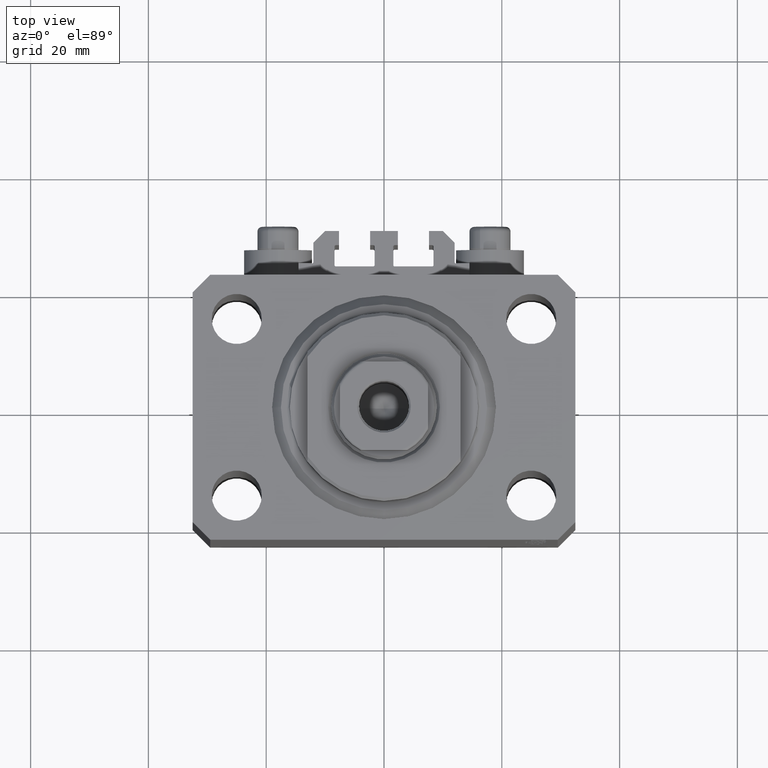
[diagram: clean part render]
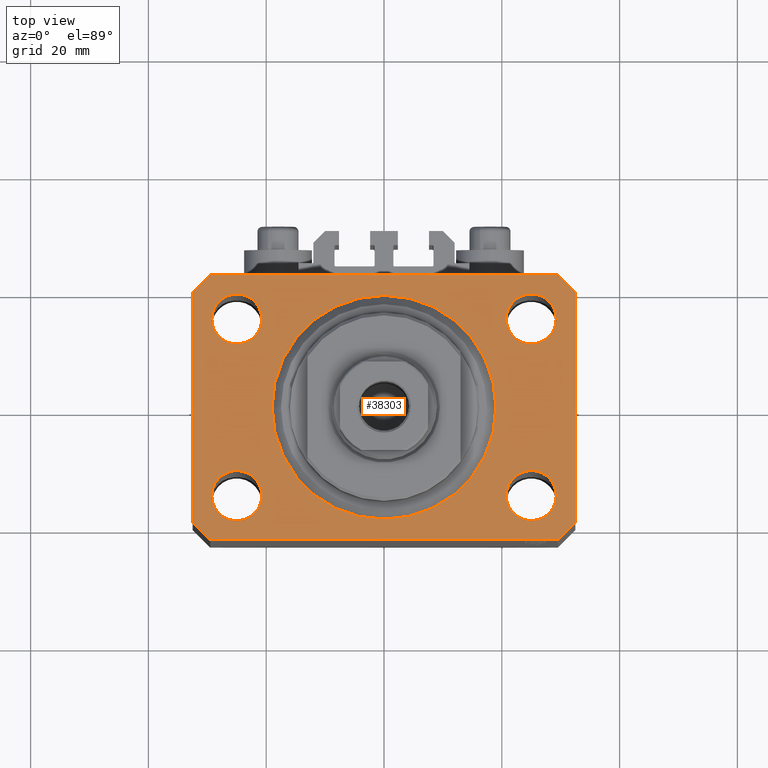
[diagram: same view with one face highlighted and labeled with its STEP entity id]
A machine part, top view. The second image highlights one B-rep face of the part: STEP entity #38303.
In plain terms, the highlighted planar face has unit normal (0, 0, 1).
Its self-contained STEP definition (entity closure, byte-faithful):
#23 = DIRECTION ( 'NONE',  ( 1.000000000000000000, 0.000000000000000000, 0.000000000000000000 ) ) ;
#2142 = DIRECTION ( 'NONE',  ( 0.000000000000000000, 0.000000000000000000, 1.000000000000000000 ) ) ;
#2761 = ORIENTED_EDGE ( 'NONE', *, *, #42204, .T. ) ;
#3304 = LINE ( 'NONE', #36657, #15096 ) ;
#3498 = EDGE_CURVE ( 'NONE', #29941, #27329, #32950, .T. ) ;
#3512 = VERTEX_POINT ( 'NONE', #23057 ) ;
#3557 = CIRCLE ( 'NONE', #30407, 19.00000000000000000 ) ;
#3789 = DIRECTION ( 'NONE',  ( 1.000000000000000000, 0.000000000000000000, 0.000000000000000000 ) ) ;
#4131 = CARTESIAN_POINT ( 'NONE',  ( 0.000000000000000000, 0.000000000000000000, 0.000000000000000000 ) ) ;
#5220 = CARTESIAN_POINT ( 'NONE',  ( 20.75000000004271072, 14.99999999999999289, 0.000000000000000000 ) ) ;
#5270 = CARTESIAN_POINT ( 'NONE',  ( 32.49999999999651124, -19.49999999999949196, 0.000000000000000000 ) ) ;
#5276 = CIRCLE ( 'NONE', #40533, 4.249999999976314058 ) ;
#5337 = CIRCLE ( 'NONE', #32183, 19.00000000000000000 ) ;
#5360 = LINE ( 'NONE', #12560, #32046 ) ;
#5439 = DIRECTION ( 'NONE',  ( -1.000000000000000000, -3.528251137580330676E-16, 0.000000000000000000 ) ) ;
#5705 = VERTEX_POINT ( 'NONE', #13856 ) ;
#5710 = ORIENTED_EDGE ( 'NONE', *, *, #15428, .T. ) ;
#5794 = CARTESIAN_POINT ( 'NONE',  ( 29.49999999999650413, -22.49999999999949196, 0.000000000000000000 ) ) ;
#5859 = ORIENTED_EDGE ( 'NONE', *, *, #7796, .F. ) ;
#6658 = EDGE_CURVE ( 'NONE', #39912, #45147, #5337, .T. ) ;
#6990 = DIRECTION ( 'NONE',  ( 1.000000000000000000, 0.000000000000000000, 0.000000000000000000 ) ) ;
#7057 = VECTOR ( 'NONE', #23085, 1000.000000000000000 ) ;
#7372 = DIRECTION ( 'NONE',  ( 0.000000000000000000, 0.000000000000000000, 1.000000000000000000 ) ) ;
#7397 = ORIENTED_EDGE ( 'NONE', *, *, #12343, .F. ) ;
#7582 = VERTEX_POINT ( 'NONE', #5794 ) ;
#7796 = EDGE_CURVE ( 'NONE', #39840, #3512, #37354, .T. ) ;
#7946 = AXIS2_PLACEMENT_3D ( 'NONE', #41028, #16060, #26631 ) ;
#8333 = EDGE_CURVE ( 'NONE', #17395, #32875, #10697, .T. ) ;
#8380 = FACE_BOUND ( 'NONE', #47050, .T. ) ;
#8948 = VERTEX_POINT ( 'NONE', #22698 ) ;
#9794 = CARTESIAN_POINT ( 'NONE',  ( 19.00000000000000000, 0.000000000000000000, 0.000000000000000000 ) ) ;
#9815 = CARTESIAN_POINT ( 'NONE',  ( 24.99999999999999289, -15.00000000000000355, 0.000000000000000000 ) ) ;
#9913 = EDGE_CURVE ( 'NONE', #5705, #8948, #22470, .T. ) ;
#10502 = DIRECTION ( 'NONE',  ( -0.7071067811865344721, 0.7071067811865606734, 0.000000000000000000 ) ) ;
#10697 = CIRCLE ( 'NONE', #47478, 4.249999999957291053 ) ;
#10791 = CIRCLE ( 'NONE', #46807, 4.250000000021375790 ) ;
#10792 = VERTEX_POINT ( 'NONE', #14142 ) ;
#11082 = EDGE_LOOP ( 'NONE', ( #12052, #15617 ) ) ;
#11235 = AXIS2_PLACEMENT_3D ( 'NONE', #17864, #39240, #46662 ) ;
#11981 = FACE_OUTER_BOUND ( 'NONE', #37063, .T. ) ;
#12052 = ORIENTED_EDGE ( 'NONE', *, *, #12872, .F. ) ;
#12293 = ORIENTED_EDGE ( 'NONE', *, *, #8333, .F. ) ;
#12343 = EDGE_CURVE ( 'NONE', #27329, #29941, #40363, .T. ) ;
#12560 = CARTESIAN_POINT ( 'NONE',  ( -29.49999999999650413, -22.49999999999949907, 0.000000000000000000 ) ) ;
#12872 = EDGE_CURVE ( 'NONE', #14263, #20353, #15836, .T. ) ;
#13466 = DIRECTION ( 'NONE',  ( 0.000000000000000000, 0.000000000000000000, 1.000000000000000000 ) ) ;
#13656 = LINE ( 'NONE', #5270, #40085 ) ;
#13856 = CARTESIAN_POINT ( 'NONE',  ( -29.49999999999650413, 22.49999999999949907, 0.000000000000000000 ) ) ;
#13936 = ORIENTED_EDGE ( 'NONE', *, *, #9913, .T. ) ;
#14142 = CARTESIAN_POINT ( 'NONE',  ( -29.49999999999650413, -22.49999999999949907, 0.000000000000000000 ) ) ;
#14263 = VERTEX_POINT ( 'NONE', #15628 ) ;
#14734 = ORIENTED_EDGE ( 'NONE', *, *, #3498, .F. ) ;
#15096 = VECTOR ( 'NONE', #10502, 1000.000000000000000 ) ;
#15114 = DIRECTION ( 'NONE',  ( 0.000000000000000000, 0.000000000000000000, 1.000000000000000000 ) ) ;
#15428 = EDGE_CURVE ( 'NONE', #43228, #10792, #28861, .T. ) ;
#15609 = DIRECTION ( 'NONE',  ( 1.000000000000000000, 0.000000000000000000, 0.000000000000000000 ) ) ;
#15617 = ORIENTED_EDGE ( 'NONE', *, *, #26447, .F. ) ;
#15628 = CARTESIAN_POINT ( 'NONE',  ( -20.74999999997862687, 14.99999999999999645, 0.000000000000000000 ) ) ;
#15647 = ORIENTED_EDGE ( 'NONE', *, *, #33629, .F. ) ;
#15836 = CIRCLE ( 'NONE', #11235, 4.250000000021375790 ) ;
#16013 = LINE ( 'NONE', #42637, #45983 ) ;
#16060 = DIRECTION ( 'NONE',  ( 0.000000000000000000, 0.000000000000000000, 1.000000000000000000 ) ) ;
#16081 = DIRECTION ( 'NONE',  ( 1.000000000000000000, 0.000000000000000000, 0.000000000000000000 ) ) ;
#16627 = AXIS2_PLACEMENT_3D ( 'NONE', #36983, #37453, #40814 ) ;
#16651 = AXIS2_PLACEMENT_3D ( 'NONE', #22101, #15114, #15609 ) ;
#17306 = VECTOR ( 'NONE', #30158, 1000.000000000000114 ) ;
#17395 = VERTEX_POINT ( 'NONE', #5220 ) ;
#17864 = CARTESIAN_POINT ( 'NONE',  ( -25.00000000000000000, 14.99999999999999645, 0.000000000000000000 ) ) ;
#18161 = VECTOR ( 'NONE', #21848, 1000.000000000000000 ) ;
#18394 = CARTESIAN_POINT ( 'NONE',  ( -29.49999999999650413, 22.49999999999949907, 0.000000000000000000 ) ) ;
#18961 = EDGE_CURVE ( 'NONE', #10792, #7582, #5360, .T. ) ;
#19426 = FACE_BOUND ( 'NONE', #46034, .T. ) ;
#19458 = CARTESIAN_POINT ( 'NONE',  ( 0.000000000000000000, 0.000000000000000000, 0.000000000000000000 ) ) ;
#20056 = CARTESIAN_POINT ( 'NONE',  ( 25.00000000000000000, 14.99999999999999289, 0.000000000000000000 ) ) ;
#20269 = CARTESIAN_POINT ( 'NONE',  ( 20.75000000002367884, -15.00000000000000355, 0.000000000000000000 ) ) ;
#20353 = VERTEX_POINT ( 'NONE', #28227 ) ;
#20975 = AXIS2_PLACEMENT_3D ( 'NONE', #20056, #27260, #34926 ) ;
#21848 = DIRECTION ( 'NONE',  ( 0.7071067811865483499, 0.7071067811865466846, 0.000000000000000000 ) ) ;
#22101 = CARTESIAN_POINT ( 'NONE',  ( 24.99999999999999289, -15.00000000000000355, 0.000000000000000000 ) ) ;
#22166 = EDGE_CURVE ( 'NONE', #3512, #39840, #5276, .T. ) ;
#22470 = LINE ( 'NONE', #18394, #17306 ) ;
#22698 = CARTESIAN_POINT ( 'NONE',  ( -32.49999999999650413, 19.49999999999949907, 0.000000000000000000 ) ) ;
#23057 = CARTESIAN_POINT ( 'NONE',  ( 29.24999999997631051, -15.00000000000000355, 0.000000000000000000 ) ) ;
#23085 = DIRECTION ( 'NONE',  ( 0.000000000000000000, -1.000000000000000000, 0.000000000000000000 ) ) ;
#24219 = EDGE_CURVE ( 'NONE', #30639, #5705, #16013, .T. ) ;
#24273 = CARTESIAN_POINT ( 'NONE',  ( -32.49999999999650413, -19.49999999999949907, 0.000000000000000000 ) ) ;
#24962 = CARTESIAN_POINT ( 'NONE',  ( 32.49999999999702993, 19.49999999999945999, 0.000000000000000000 ) ) ;
#25088 = ORIENTED_EDGE ( 'NONE', *, *, #22166, .F. ) ;
#25511 = DIRECTION ( 'NONE',  ( 0.000000000000000000, 0.000000000000000000, 1.000000000000000000 ) ) ;
#25632 = CARTESIAN_POINT ( 'NONE',  ( 25.00000000000000000, 14.99999999999999289, 0.000000000000000000 ) ) ;
#26404 = FACE_BOUND ( 'NONE', #11082, .T. ) ;
#26447 = EDGE_CURVE ( 'NONE', #20353, #14263, #10791, .T. ) ;
#26587 = ORIENTED_EDGE ( 'NONE', *, *, #29245, .T. ) ;
#26631 = DIRECTION ( 'NONE',  ( 1.000000000000000000, 0.000000000000000000, -0.000000000000000000 ) ) ;
#26877 = PLANE ( 'NONE',  #7946 ) ;
#27260 = DIRECTION ( 'NONE',  ( 0.000000000000000000, 0.000000000000000000, 1.000000000000000000 ) ) ;
#27329 = VERTEX_POINT ( 'NONE', #40633 ) ;
#28227 = CARTESIAN_POINT ( 'NONE',  ( -29.25000000002137668, 14.99999999999999645, 0.000000000000000000 ) ) ;
#28861 = LINE ( 'NONE', #43736, #41223 ) ;
#29066 = CARTESIAN_POINT ( 'NONE',  ( -25.00000000000000000, 14.99999999999999645, 0.000000000000000000 ) ) ;
#29245 = EDGE_CURVE ( 'NONE', #8948, #43228, #37948, .T. ) ;
#29798 = CARTESIAN_POINT ( 'NONE',  ( 29.24999999995729283, 14.99999999999999289, 0.000000000000000000 ) ) ;
#29898 = CARTESIAN_POINT ( 'NONE',  ( 29.49999999999707967, 22.49999999999952038, 0.000000000000000000 ) ) ;
#29941 = VERTEX_POINT ( 'NONE', #39967 ) ;
#30060 = ORIENTED_EDGE ( 'NONE', *, *, #18961, .T. ) ;
#30158 = DIRECTION ( 'NONE',  ( -0.7071067811865474617, -0.7071067811865474617, 0.000000000000000000 ) ) ;
#30240 = FACE_BOUND ( 'NONE', #36289, .T. ) ;
#30407 = AXIS2_PLACEMENT_3D ( 'NONE', #19458, #37229, #23 ) ;
#30639 = VERTEX_POINT ( 'NONE', #29898 ) ;
#32046 = VECTOR ( 'NONE', #34410, 1000.000000000000000 ) ;
#32183 = AXIS2_PLACEMENT_3D ( 'NONE', #4131, #25511, #32940 ) ;
#32200 = EDGE_CURVE ( 'NONE', #41724, #34589, #13656, .T. ) ;
#32241 = DIRECTION ( 'NONE',  ( 0.7071067811865474617, -0.7071067811865474617, 0.000000000000000000 ) ) ;
#32875 = VERTEX_POINT ( 'NONE', #29798 ) ;
#32940 = DIRECTION ( 'NONE',  ( 1.000000000000000000, 0.000000000000000000, 0.000000000000000000 ) ) ;
#32950 = CIRCLE ( 'NONE', #39105, 4.250000000040370374 ) ;
#33108 = LINE ( 'NONE', #36248, #18161 ) ;
#33629 = EDGE_CURVE ( 'NONE', #32875, #17395, #41664, .T. ) ;
#34350 = CARTESIAN_POINT ( 'NONE',  ( -32.49999999999650413, 19.49999999999949907, 0.000000000000000000 ) ) ;
#34410 = DIRECTION ( 'NONE',  ( 1.000000000000000000, 1.176083712526788232E-16, 0.000000000000000000 ) ) ;
#34589 = VERTEX_POINT ( 'NONE', #24962 ) ;
#34926 = DIRECTION ( 'NONE',  ( 1.000000000000000000, 0.000000000000000000, 0.000000000000000000 ) ) ;
#36066 = ORIENTED_EDGE ( 'NONE', *, *, #24219, .T. ) ;
#36248 = CARTESIAN_POINT ( 'NONE',  ( 29.49999999999650413, -22.49999999999949196, 0.000000000000000000 ) ) ;
#36289 = EDGE_LOOP ( 'NONE', ( #25088, #5859 ) ) ;
#36657 = CARTESIAN_POINT ( 'NONE',  ( 32.49999999999702993, 19.49999999999945999, 0.000000000000000000 ) ) ;
#36983 = CARTESIAN_POINT ( 'NONE',  ( -24.99999999999999289, -15.00000000000000355, 0.000000000000000000 ) ) ;
#37063 = EDGE_LOOP ( 'NONE', ( #36066, #13936, #26587, #5710, #30060, #2761, #42780, #39931 ) ) ;
#37229 = DIRECTION ( 'NONE',  ( 0.000000000000000000, 0.000000000000000000, 1.000000000000000000 ) ) ;
#37354 = CIRCLE ( 'NONE', #16651, 4.249999999976314058 ) ;
#37453 = DIRECTION ( 'NONE',  ( 0.000000000000000000, 0.000000000000000000, 1.000000000000000000 ) ) ;
#37948 = LINE ( 'NONE', #34350, #7057 ) ;
#38251 = EDGE_LOOP ( 'NONE', ( #44021, #40901 ) ) ;
#38282 = CARTESIAN_POINT ( 'NONE',  ( -19.00000000000000000, 2.326828918379970970E-15, 0.000000000000000000 ) ) ;
#38303 = ADVANCED_FACE ( 'NONE', ( #44623, #8380, #30240, #19426, #26404, #11981 ), #26877, .T. ) ;
#39105 = AXIS2_PLACEMENT_3D ( 'NONE', #47065, #43471, #6990 ) ;
#39240 = DIRECTION ( 'NONE',  ( 0.000000000000000000, 0.000000000000000000, 1.000000000000000000 ) ) ;
#39840 = VERTEX_POINT ( 'NONE', #20269 ) ;
#39912 = VERTEX_POINT ( 'NONE', #38282 ) ;
#39931 = ORIENTED_EDGE ( 'NONE', *, *, #42529, .T. ) ;
#39967 = CARTESIAN_POINT ( 'NONE',  ( -29.25000000004036593, -15.00000000000000355, 0.000000000000000000 ) ) ;
#40085 = VECTOR ( 'NONE', #46537, 1000.000000000000000 ) ;
#40363 = CIRCLE ( 'NONE', #16627, 4.250000000040370374 ) ;
#40533 = AXIS2_PLACEMENT_3D ( 'NONE', #9815, #2142, #16081 ) ;
#40633 = CARTESIAN_POINT ( 'NONE',  ( -20.74999999995962341, -15.00000000000000355, 0.000000000000000000 ) ) ;
#40814 = DIRECTION ( 'NONE',  ( 1.000000000000000000, 0.000000000000000000, 0.000000000000000000 ) ) ;
#40901 = ORIENTED_EDGE ( 'NONE', *, *, #6658, .F. ) ;
#41028 = CARTESIAN_POINT ( 'NONE',  ( 0.000000000000000000, 0.000000000000000000, 0.000000000000000000 ) ) ;
#41055 = EDGE_CURVE ( 'NONE', #45147, #39912, #3557, .T. ) ;
#41223 = VECTOR ( 'NONE', #32241, 1000.000000000000114 ) ;
#41381 = CARTESIAN_POINT ( 'NONE',  ( 32.49999999999651124, -19.49999999999949196, 0.000000000000000000 ) ) ;
#41664 = CIRCLE ( 'NONE', #20975, 4.249999999957291053 ) ;
#41724 = VERTEX_POINT ( 'NONE', #41381 ) ;
#42204 = EDGE_CURVE ( 'NONE', #7582, #41724, #33108, .T. ) ;
#42529 = EDGE_CURVE ( 'NONE', #34589, #30639, #3304, .T. ) ;
#42637 = CARTESIAN_POINT ( 'NONE',  ( 29.49999999999707967, 22.49999999999952038, 0.000000000000000000 ) ) ;
#42780 = ORIENTED_EDGE ( 'NONE', *, *, #32200, .T. ) ;
#43228 = VERTEX_POINT ( 'NONE', #24273 ) ;
#43231 = DIRECTION ( 'NONE',  ( 1.000000000000000000, 0.000000000000000000, 0.000000000000000000 ) ) ;
#43471 = DIRECTION ( 'NONE',  ( 0.000000000000000000, 0.000000000000000000, 1.000000000000000000 ) ) ;
#43736 = CARTESIAN_POINT ( 'NONE',  ( -32.49999999999650413, -19.49999999999949907, 0.000000000000000000 ) ) ;
#44021 = ORIENTED_EDGE ( 'NONE', *, *, #41055, .F. ) ;
#44623 = FACE_BOUND ( 'NONE', #38251, .T. ) ;
#45147 = VERTEX_POINT ( 'NONE', #9794 ) ;
#45983 = VECTOR ( 'NONE', #5439, 1000.000000000000000 ) ;
#46034 = EDGE_LOOP ( 'NONE', ( #15647, #12293 ) ) ;
#46537 = DIRECTION ( 'NONE',  ( 1.334402673828349134E-14, 1.000000000000000000, 0.000000000000000000 ) ) ;
#46662 = DIRECTION ( 'NONE',  ( 1.000000000000000000, 0.000000000000000000, 0.000000000000000000 ) ) ;
#46807 = AXIS2_PLACEMENT_3D ( 'NONE', #29066, #13466, #43231 ) ;
#47050 = EDGE_LOOP ( 'NONE', ( #7397, #14734 ) ) ;
#47065 = CARTESIAN_POINT ( 'NONE',  ( -24.99999999999999289, -15.00000000000000355, 0.000000000000000000 ) ) ;
#47478 = AXIS2_PLACEMENT_3D ( 'NONE', #25632, #7372, #3789 ) ;